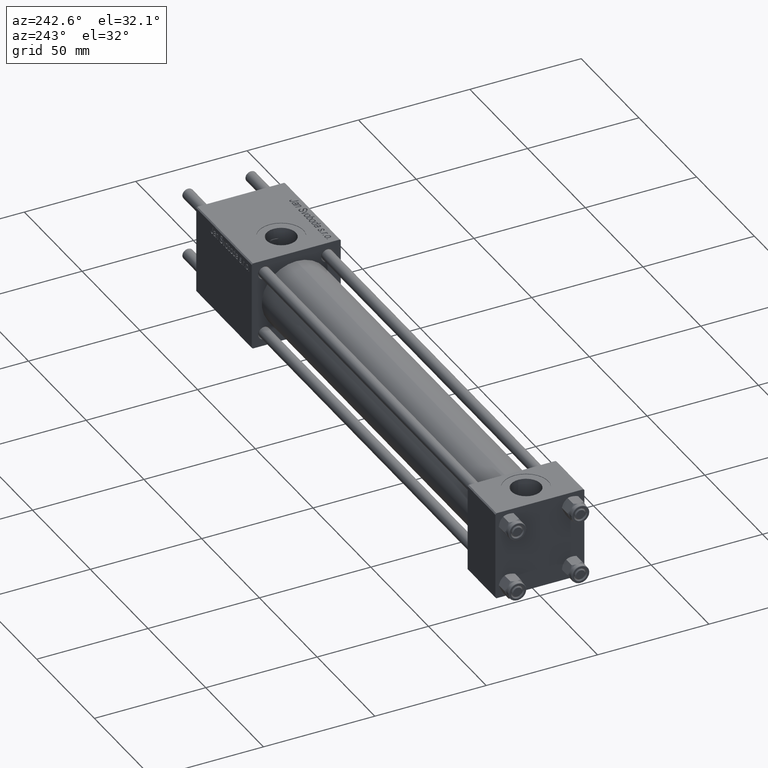
[diagram: clean part render]
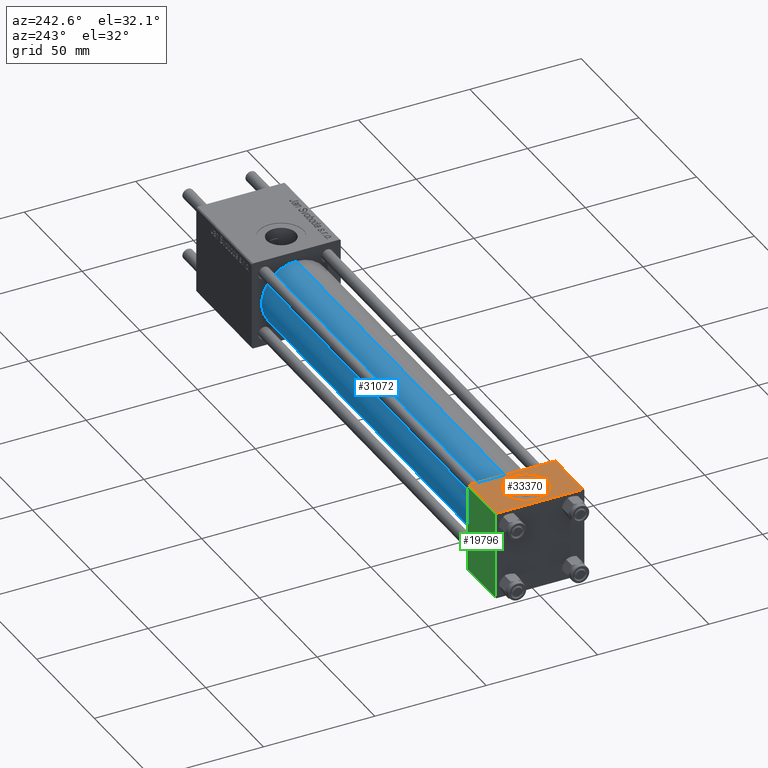
[diagram: same view with three faces highlighted in distinct colors, each labeled with its STEP entity id]
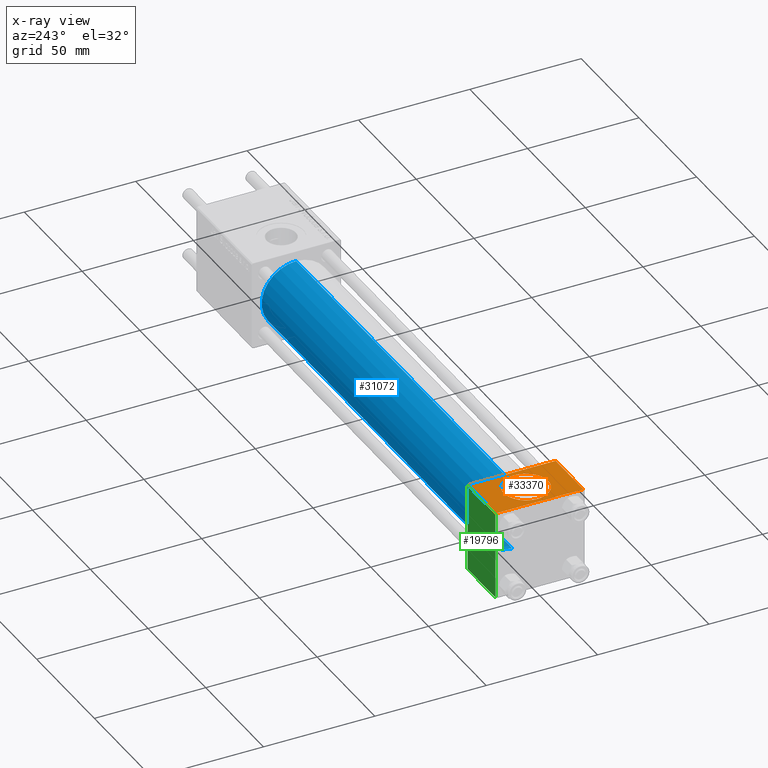
[diagram: x-ray of the same camera — body ghosted, the three highlighted faces saturated]
A machine part, auxiliary view with three faces highlighted in distinct colors.
The next image is the same camera in x-ray (body ghosted, the three faces saturated) — at least one of them is partly hidden behind the body in this view.
Their STEP definitions:

[orange] entity #33370 — the highlighted planar face has unit normal (0, 0, -1).
#462 = EDGE_CURVE ( 'NONE', #20289, #24234, #9740, .T. ) ;
#468 = LINE ( 'NONE', #9646, #31124 ) ;
#674 = CARTESIAN_POINT ( 'NONE',  ( 24.00000000000000000, 20.00000000000000000, 20.00000000000000000 ) ) ;
#887 = DIRECTION ( 'NONE',  ( 0.000000000000000000, 1.000000000000000000, 2.602085213965210149E-16 ) ) ;
#1174 = DIRECTION ( 'NONE',  ( 0.000000000000000000, 2.602085213965210149E-16, -1.000000000000000000 ) ) ;
#2517 = DIRECTION ( 'NONE',  ( 0.000000000000000000, 0.000000000000000000, 1.000000000000000000 ) ) ;
#4549 = ORIENTED_EDGE ( 'NONE', *, *, #39807, .T. ) ;
#5357 = DIRECTION ( 'NONE',  ( 0.000000000000000000, 0.000000000000000000, 1.000000000000000000 ) ) ;
#9646 = CARTESIAN_POINT ( 'NONE',  ( 24.00000000000000000, -19.49999999999999289, 19.99999999999998934 ) ) ;
#9740 = CIRCLE ( 'NONE', #31726, 9.999999999999998224 ) ;
#10584 = VERTEX_POINT ( 'NONE', #33049 ) ;
#11383 = LINE ( 'NONE', #28875, #21399 ) ;
#11859 = EDGE_CURVE ( 'NONE', #24234, #20289, #27386, .T. ) ;
#12983 = EDGE_LOOP ( 'NONE', ( #24954, #50123 ) ) ;
#13963 = CARTESIAN_POINT ( 'NONE',  ( 12.00000000000000000, 1.540743955509788682E-30, 19.99999999999999645 ) ) ;
#15679 = DIRECTION ( 'NONE',  ( 0.000000000000000000, -1.000000000000000000, -2.602085213965210149E-16 ) ) ;
#17668 = DIRECTION ( 'NONE',  ( 1.000000000000000000, 0.000000000000000000, 0.000000000000000000 ) ) ;
#18156 = DIRECTION ( 'NONE',  ( 0.000000000000000000, -1.000000000000000000, -2.602085213965210149E-16 ) ) ;
#19456 = CARTESIAN_POINT ( 'NONE',  ( 12.00000000000000000, 1.540743955509788682E-30, 19.99999999999999645 ) ) ;
#20289 = VERTEX_POINT ( 'NONE', #34143 ) ;
#20601 = CARTESIAN_POINT ( 'NONE',  ( 0.000000000000000000, 19.50000000000000000, 20.00000000000000000 ) ) ;
#21399 = VECTOR ( 'NONE', #15679, 1000.000000000000000 ) ;
#22386 = FACE_BOUND ( 'NONE', #12983, .T. ) ;
#22461 = LINE ( 'NONE', #674, #35716 ) ;
#23258 = LINE ( 'NONE', #36463, #44207 ) ;
#23681 = CARTESIAN_POINT ( 'NONE',  ( 0.000000000000000000, -19.49999999999999289, 19.99999999999998934 ) ) ;
#24234 = VERTEX_POINT ( 'NONE', #29512 ) ;
#24261 = VERTEX_POINT ( 'NONE', #20601 ) ;
#24954 = ORIENTED_EDGE ( 'NONE', *, *, #462, .F. ) ;
#26000 = VERTEX_POINT ( 'NONE', #43613 ) ;
#27386 = CIRCLE ( 'NONE', #30129, 9.999999999999998224 ) ;
#28875 = CARTESIAN_POINT ( 'NONE',  ( 0.000000000000000000, 20.00000000000000000, 20.00000000000000000 ) ) ;
#29512 = CARTESIAN_POINT ( 'NONE',  ( 2.000000000000003553, 1.224646799147354440E-15, 19.99999999999999645 ) ) ;
#30129 = AXIS2_PLACEMENT_3D ( 'NONE', #19456, #2517, #40966 ) ;
#31124 = VECTOR ( 'NONE', #17668, 1000.000000000000000 ) ;
#31726 = AXIS2_PLACEMENT_3D ( 'NONE', #13963, #5357, #36337 ) ;
#33049 = CARTESIAN_POINT ( 'NONE',  ( 24.00000000000000000, -19.49999999999999289, 19.99999999999998934 ) ) ;
#33370 = ADVANCED_FACE ( 'NONE', ( #22386, #36458 ), #53920, .F. ) ;
#34143 = CARTESIAN_POINT ( 'NONE',  ( 22.00000000000000000, 1.540743955509788682E-30, 19.99999999999999645 ) ) ;
#35716 = VECTOR ( 'NONE', #18156, 1000.000000000000000 ) ;
#36337 = DIRECTION ( 'NONE',  ( 1.000000000000000000, 0.000000000000000000, 0.000000000000000000 ) ) ;
#36458 = FACE_OUTER_BOUND ( 'NONE', #42600, .T. ) ;
#36463 = CARTESIAN_POINT ( 'NONE',  ( 0.000000000000000000, 19.50000000000000000, 20.00000000000000000 ) ) ;
#38996 = ORIENTED_EDGE ( 'NONE', *, *, #55696, .T. ) ;
#39753 = ORIENTED_EDGE ( 'NONE', *, *, #55917, .F. ) ;
#39807 = EDGE_CURVE ( 'NONE', #26000, #24261, #23258, .T. ) ;
#40966 = DIRECTION ( 'NONE',  ( 1.000000000000000000, 0.000000000000000000, 0.000000000000000000 ) ) ;
#41600 = ORIENTED_EDGE ( 'NONE', *, *, #47714, .T. ) ;
#42600 = EDGE_LOOP ( 'NONE', ( #41600, #38996, #39753, #4549 ) ) ;
#43613 = CARTESIAN_POINT ( 'NONE',  ( 24.00000000000000000, 19.50000000000000000, 20.00000000000000000 ) ) ;
#44207 = VECTOR ( 'NONE', #45614, 1000.000000000000000 ) ;
#45614 = DIRECTION ( 'NONE',  ( -1.000000000000000000, 0.000000000000000000, 0.000000000000000000 ) ) ;
#47714 = EDGE_CURVE ( 'NONE', #24261, #55770, #11383, .T. ) ;
#49625 = CARTESIAN_POINT ( 'NONE',  ( 24.00000000000000000, 20.00000000000000000, 20.00000000000000000 ) ) ;
#50123 = ORIENTED_EDGE ( 'NONE', *, *, #11859, .F. ) ;
#53159 = AXIS2_PLACEMENT_3D ( 'NONE', #49625, #1174, #887 ) ;
#53920 = PLANE ( 'NONE',  #53159 ) ;
#55696 = EDGE_CURVE ( 'NONE', #55770, #10584, #468, .T. ) ;
#55770 = VERTEX_POINT ( 'NONE', #23681 ) ;
#55917 = EDGE_CURVE ( 'NONE', #26000, #10584, #22461, .T. ) ;

[blue] entity #31072 — the highlighted cylindrical surface (partial cylindrical patch) has radius 15.5 mm, axis along (-1, -0, -0).
#4673 = VECTOR ( 'NONE', #54403, 1000.000000000000000 ) ;
#4822 = AXIS2_PLACEMENT_3D ( 'NONE', #14368, #18663, #36181 ) ;
#6137 = ORIENTED_EDGE ( 'NONE', *, *, #35071, .T. ) ;
#9808 = EDGE_CURVE ( 'NONE', #44412, #39430, #10805, .T. ) ;
#10805 = CIRCLE ( 'NONE', #20882, 15.50000000000000000 ) ;
#13536 = FACE_OUTER_BOUND ( 'NONE', #15697, .T. ) ;
#14260 = DIRECTION ( 'NONE',  ( 1.000000000000000000, 0.000000000000000000, 0.000000000000000000 ) ) ;
#14368 = CARTESIAN_POINT ( 'NONE',  ( 23.99999999999999289, -2.602085213965210642E-15, 0.000000000000000000 ) ) ;
#14678 = DIRECTION ( 'NONE',  ( -1.000000000000000000, -0.000000000000000000, -0.000000000000000000 ) ) ;
#15697 = EDGE_LOOP ( 'NONE', ( #18659, #6137, #54494, #21534 ) ) ;
#15818 = CIRCLE ( 'NONE', #4822, 15.50000000000000000 ) ;
#15997 = EDGE_CURVE ( 'NONE', #39430, #42929, #43712, .T. ) ;
#17319 = CARTESIAN_POINT ( 'NONE',  ( 211.0000000000000000, -2.602085213965210642E-15, 15.50000000000000000 ) ) ;
#18551 = DIRECTION ( 'NONE',  ( 0.000000000000000000, 0.000000000000000000, -1.000000000000000000 ) ) ;
#18659 = ORIENTED_EDGE ( 'NONE', *, *, #9808, .F. ) ;
#18663 = DIRECTION ( 'NONE',  ( 1.000000000000000000, 0.000000000000000000, 0.000000000000000000 ) ) ;
#20882 = AXIS2_PLACEMENT_3D ( 'NONE', #26888, #14260, #18551 ) ;
#21534 = ORIENTED_EDGE ( 'NONE', *, *, #15997, .F. ) ;
#26543 = AXIS2_PLACEMENT_3D ( 'NONE', #53360, #44777, #35627 ) ;
#26888 = CARTESIAN_POINT ( 'NONE',  ( 211.0000000000000000, -2.602085213965210642E-15, 0.000000000000000000 ) ) ;
#28971 = VERTEX_POINT ( 'NONE', #30644 ) ;
#29938 = VECTOR ( 'NONE', #14678, 1000.000000000000000 ) ;
#30644 = CARTESIAN_POINT ( 'NONE',  ( 23.99999999999999289, -7.038826752868131828E-16, -15.50000000000000000 ) ) ;
#31072 = ADVANCED_FACE ( 'NONE', ( #13536 ), #35911, .T. ) ;
#31257 = CARTESIAN_POINT ( 'NONE',  ( 23.99999999999999289, -2.602085213965210642E-15, 15.50000000000000000 ) ) ;
#33327 = CARTESIAN_POINT ( 'NONE',  ( 211.0000000000000000, -7.038826752868131828E-16, -15.50000000000000000 ) ) ;
#35071 = EDGE_CURVE ( 'NONE', #44412, #28971, #36660, .T. ) ;
#35627 = DIRECTION ( 'NONE',  ( 0.000000000000000000, 0.000000000000000000, 1.000000000000000000 ) ) ;
#35911 = CYLINDRICAL_SURFACE ( 'NONE', #26543, 15.50000000000000000 ) ;
#36181 = DIRECTION ( 'NONE',  ( 0.000000000000000000, 0.000000000000000000, 1.000000000000000000 ) ) ;
#36660 = LINE ( 'NONE', #50655, #4673 ) ;
#39430 = VERTEX_POINT ( 'NONE', #17319 ) ;
#39777 = EDGE_CURVE ( 'NONE', #28971, #42929, #15818, .T. ) ;
#42929 = VERTEX_POINT ( 'NONE', #31257 ) ;
#43712 = LINE ( 'NONE', #52849, #29938 ) ;
#44412 = VERTEX_POINT ( 'NONE', #33327 ) ;
#44777 = DIRECTION ( 'NONE',  ( -1.000000000000000000, -0.000000000000000000, -0.000000000000000000 ) ) ;
#50655 = CARTESIAN_POINT ( 'NONE',  ( 211.0000000000000000, -7.038826752868131828E-16, -15.50000000000000000 ) ) ;
#52849 = CARTESIAN_POINT ( 'NONE',  ( 211.0000000000000000, -2.602085213965210642E-15, 15.50000000000000000 ) ) ;
#53360 = CARTESIAN_POINT ( 'NONE',  ( 211.0000000000000000, -2.602085213965210642E-15, 0.000000000000000000 ) ) ;
#54403 = DIRECTION ( 'NONE',  ( -1.000000000000000000, -0.000000000000000000, -0.000000000000000000 ) ) ;
#54494 = ORIENTED_EDGE ( 'NONE', *, *, #39777, .T. ) ;

[green] entity #19796 — the highlighted planar face has unit normal (0, 1, 0).
#1329 = LINE ( 'NONE', #26858, #21893 ) ;
#1538 = VERTEX_POINT ( 'NONE', #36131 ) ;
#1805 = CARTESIAN_POINT ( 'NONE',  ( 24.00000000000000000, 20.00000000000000000, -19.50000000000002132 ) ) ;
#2027 = LINE ( 'NONE', #2578, #14424 ) ;
#2115 = DIRECTION ( 'NONE',  ( -0.000000000000000000, 1.000000000000000000, 0.000000000000000000 ) ) ;
#2578 = CARTESIAN_POINT ( 'NONE',  ( 24.00000000000000000, 20.00000000000000000, -19.50000000000002132 ) ) ;
#6151 = EDGE_CURVE ( 'NONE', #1538, #7144, #39236, .T. ) ;
#6411 = CARTESIAN_POINT ( 'NONE',  ( 0.000000000000000000, 20.00000000000000000, -19.50000000000002132 ) ) ;
#7144 = VERTEX_POINT ( 'NONE', #25425 ) ;
#11989 = LINE ( 'NONE', #25459, #26616 ) ;
#13652 = EDGE_LOOP ( 'NONE', ( #44502, #16279, #17892, #18927 ) ) ;
#14424 = VECTOR ( 'NONE', #37865, 1000.000000000000000 ) ;
#16262 = AXIS2_PLACEMENT_3D ( 'NONE', #45423, #2115, #19598 ) ;
#16279 = ORIENTED_EDGE ( 'NONE', *, *, #18038, .T. ) ;
#17892 = ORIENTED_EDGE ( 'NONE', *, *, #34769, .F. ) ;
#18038 = EDGE_CURVE ( 'NONE', #35320, #52588, #2027, .T. ) ;
#18807 = DIRECTION ( 'NONE',  ( 0.000000000000000000, 0.000000000000000000, -1.000000000000000000 ) ) ;
#18927 = ORIENTED_EDGE ( 'NONE', *, *, #6151, .T. ) ;
#19598 = DIRECTION ( 'NONE',  ( 0.000000000000000000, -0.000000000000000000, 1.000000000000000000 ) ) ;
#19796 = ADVANCED_FACE ( 'NONE', ( #44551 ), #41405, .T. ) ;
#21893 = VECTOR ( 'NONE', #18807, 1000.000000000000000 ) ;
#25425 = CARTESIAN_POINT ( 'NONE',  ( 24.00000000000000000, 20.00000000000000000, 19.49999999999999289 ) ) ;
#25459 = CARTESIAN_POINT ( 'NONE',  ( 0.000000000000000000, 20.00000000000000000, 20.00000000000000000 ) ) ;
#26616 = VECTOR ( 'NONE', #30049, 1000.000000000000000 ) ;
#26858 = CARTESIAN_POINT ( 'NONE',  ( 24.00000000000000000, 20.00000000000000000, 20.00000000000000000 ) ) ;
#30049 = DIRECTION ( 'NONE',  ( 0.000000000000000000, 0.000000000000000000, -1.000000000000000000 ) ) ;
#34769 = EDGE_CURVE ( 'NONE', #1538, #52588, #11989, .T. ) ;
#35320 = VERTEX_POINT ( 'NONE', #1805 ) ;
#36131 = CARTESIAN_POINT ( 'NONE',  ( 0.000000000000000000, 20.00000000000000000, 19.49999999999999289 ) ) ;
#37865 = DIRECTION ( 'NONE',  ( -1.000000000000000000, 0.000000000000000000, 0.000000000000000000 ) ) ;
#39236 = LINE ( 'NONE', #39523, #56496 ) ;
#39523 = CARTESIAN_POINT ( 'NONE',  ( 24.00000000000000000, 20.00000000000000000, 19.49999999999999289 ) ) ;
#41405 = PLANE ( 'NONE',  #16262 ) ;
#42966 = DIRECTION ( 'NONE',  ( 1.000000000000000000, 0.000000000000000000, 0.000000000000000000 ) ) ;
#44502 = ORIENTED_EDGE ( 'NONE', *, *, #53350, .T. ) ;
#44551 = FACE_OUTER_BOUND ( 'NONE', #13652, .T. ) ;
#45423 = CARTESIAN_POINT ( 'NONE',  ( 24.00000000000000000, 20.00000000000000000, 20.00000000000000000 ) ) ;
#52588 = VERTEX_POINT ( 'NONE', #6411 ) ;
#53350 = EDGE_CURVE ( 'NONE', #7144, #35320, #1329, .T. ) ;
#56496 = VECTOR ( 'NONE', #42966, 1000.000000000000000 ) ;